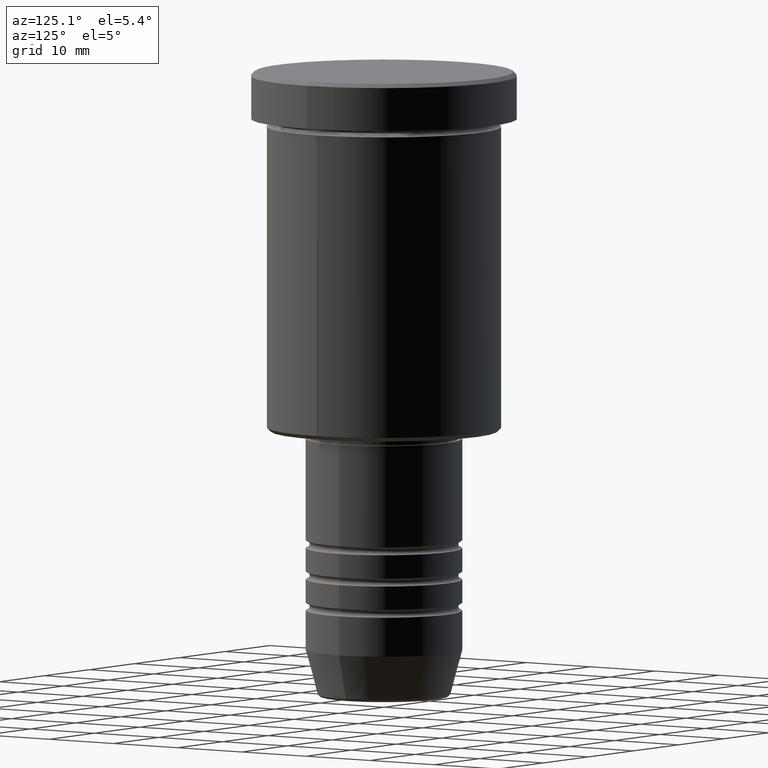
[diagram: clean part render]
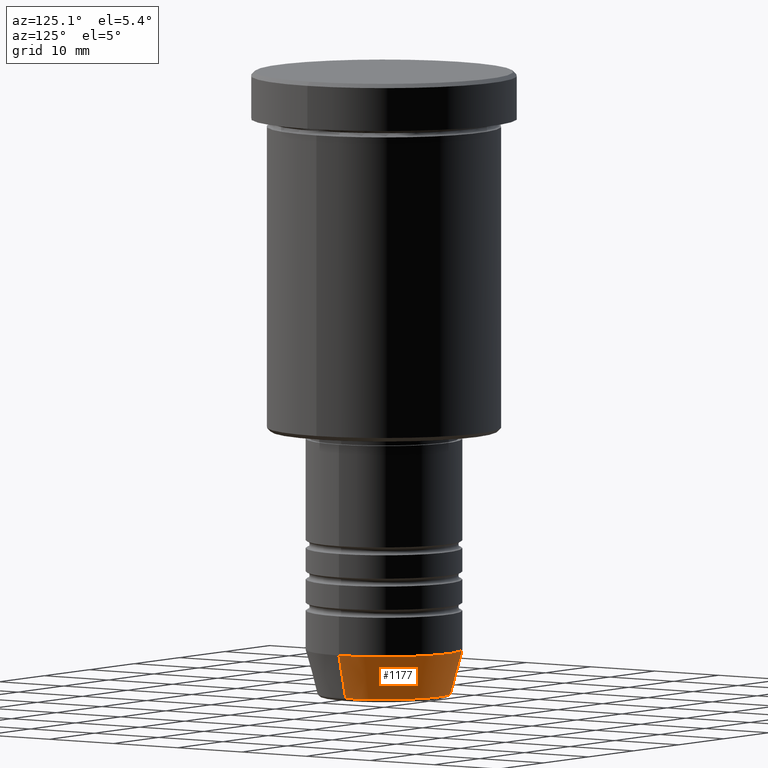
[diagram: same view with one face highlighted and labeled with its STEP entity id]
A machine part, auxiliary view. The second image highlights one B-rep face of the part: STEP entity #1177.
In plain terms, the highlighted conical surface has half-angle 15 deg.
Its self-contained STEP definition (entity closure, byte-faithful):
#42 = CARTESIAN_POINT ( 'NONE',  ( 10.00000000000000178, 0.000000000000000000, -74.00000000000001421 ) ) ;
#86 = ORIENTED_EDGE ( 'NONE', *, *, #815, .F. ) ;
#134 = CIRCLE ( 'NONE', #800, 10.00000000000000178 ) ;
#140 = ORIENTED_EDGE ( 'NONE', *, *, #834, .T. ) ;
#157 = VERTEX_POINT ( 'NONE', #567 ) ;
#163 = DIRECTION ( 'NONE',  ( 1.000000000000000000, 0.000000000000000000, 0.000000000000000000 ) ) ;
#178 = CARTESIAN_POINT ( 'NONE',  ( 0.000000000000000000, 0.000000000000000000, -79.62940952255127058 ) ) ;
#184 = DIRECTION ( 'NONE',  ( 1.000000000000000000, 0.000000000000000000, 0.000000000000000000 ) ) ;
#198 = FACE_OUTER_BOUND ( 'NONE', #963, .T. ) ;
#220 = LINE ( 'NONE', #42, #579 ) ;
#255 = LINE ( 'NONE', #981, #565 ) ;
#285 = CARTESIAN_POINT ( 'NONE',  ( 10.00000000000000178, 0.000000000000000000, -74.00000000000001421 ) ) ;
#319 = CARTESIAN_POINT ( 'NONE',  ( 8.491604264568316296, 0.000000000000000000, -79.62940952255127058 ) ) ;
#346 = ORIENTED_EDGE ( 'NONE', *, *, #378, .F. ) ;
#378 = EDGE_CURVE ( 'NONE', #414, #513, #220, .T. ) ;
#381 = CARTESIAN_POINT ( 'NONE',  ( -8.491604264568316296, 1.132284198685156781E-15, -79.62940952255127058 ) ) ;
#414 = VERTEX_POINT ( 'NONE', #319 ) ;
#435 = CARTESIAN_POINT ( 'NONE',  ( 0.000000000000000000, 0.000000000000000000, -74.00000000000001421 ) ) ;
#441 = ORIENTED_EDGE ( 'NONE', *, *, #1000, .T. ) ;
#510 = VERTEX_POINT ( 'NONE', #381 ) ;
#513 = VERTEX_POINT ( 'NONE', #285 ) ;
#565 = VECTOR ( 'NONE', #717, 1000.000000000000000 ) ;
#567 = CARTESIAN_POINT ( 'NONE',  ( -10.00000000000000178, 1.224646799147353454E-15, -74.00000000000001421 ) ) ;
#579 = VECTOR ( 'NONE', #766, 1000.000000000000000 ) ;
#584 = CONICAL_SURFACE ( 'NONE', #1147, 10.00000000000000178, 0.2617993877991501295 ) ;
#623 = DIRECTION ( 'NONE',  ( -0.000000000000000000, -0.000000000000000000, 1.000000000000000000 ) ) ;
#691 = AXIS2_PLACEMENT_3D ( 'NONE', #178, #623, #895 ) ;
#711 = CARTESIAN_POINT ( 'NONE',  ( 0.000000000000000000, 0.000000000000000000, -74.00000000000001421 ) ) ;
#717 = DIRECTION ( 'NONE',  ( -0.2588190451025214056, 3.169619151431772953E-17, 0.9659258262890680902 ) ) ;
#766 = DIRECTION ( 'NONE',  ( 0.2588190451025214056, 0.000000000000000000, 0.9659258262890680902 ) ) ;
#800 = AXIS2_PLACEMENT_3D ( 'NONE', #711, #1001, #184 ) ;
#815 = EDGE_CURVE ( 'NONE', #513, #157, #134, .T. ) ;
#834 = EDGE_CURVE ( 'NONE', #510, #157, #255, .T. ) ;
#895 = DIRECTION ( 'NONE',  ( 1.000000000000000000, 0.000000000000000000, 0.000000000000000000 ) ) ;
#963 = EDGE_LOOP ( 'NONE', ( #441, #140, #86, #346 ) ) ;
#981 = CARTESIAN_POINT ( 'NONE',  ( -10.00000000000000178, 1.224646799147353454E-15, -74.00000000000001421 ) ) ;
#998 = DIRECTION ( 'NONE',  ( -0.000000000000000000, -0.000000000000000000, 1.000000000000000000 ) ) ;
#1000 = EDGE_CURVE ( 'NONE', #414, #510, #1068, .T. ) ;
#1001 = DIRECTION ( 'NONE',  ( -0.000000000000000000, -0.000000000000000000, 1.000000000000000000 ) ) ;
#1068 = CIRCLE ( 'NONE', #691, 8.491604264568316296 ) ;
#1147 = AXIS2_PLACEMENT_3D ( 'NONE', #435, #998, #163 ) ;
#1177 = ADVANCED_FACE ( 'NONE', ( #198 ), #584, .T. ) ;